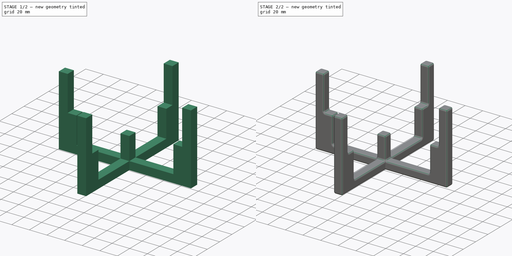
[diagram: build sequence overview — one tinted view per stage of 2, left to right]
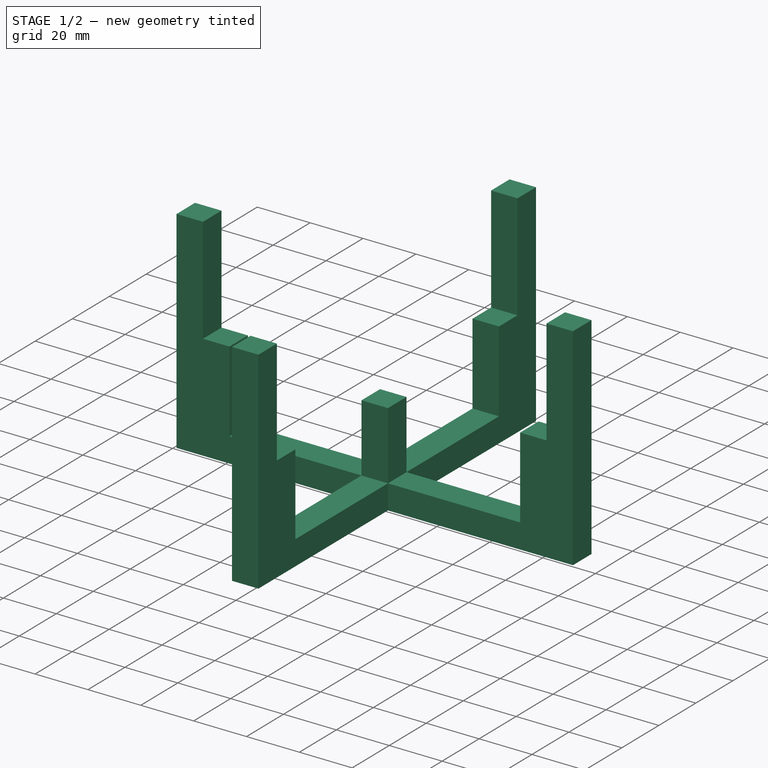
[diagram: stage 1 of 2 — iso view after this stage's code; geometry added in this stage tinted green]
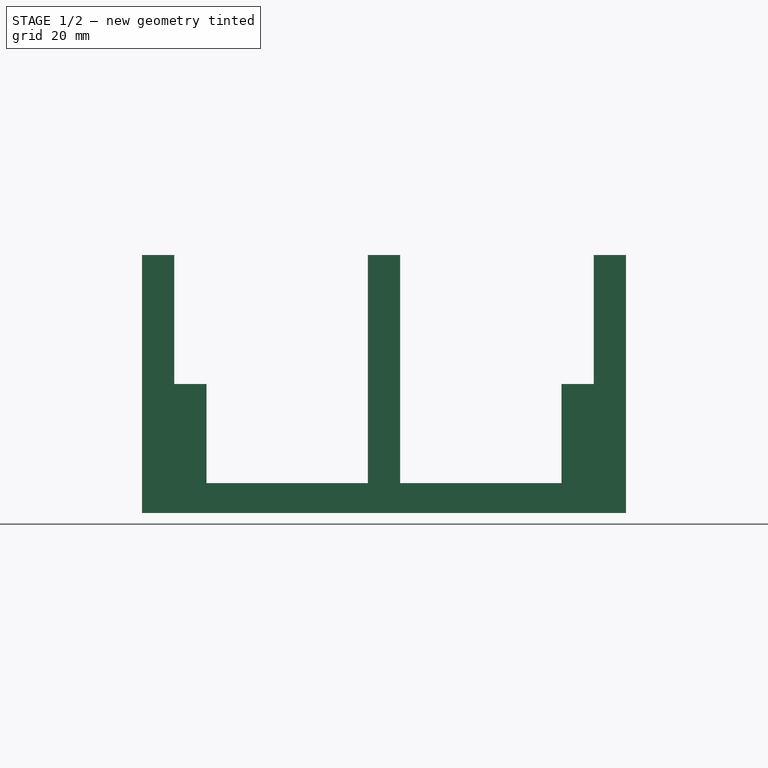
[diagram: stage 1 of 2 — front view after this stage's code; geometry added in this stage tinted green]
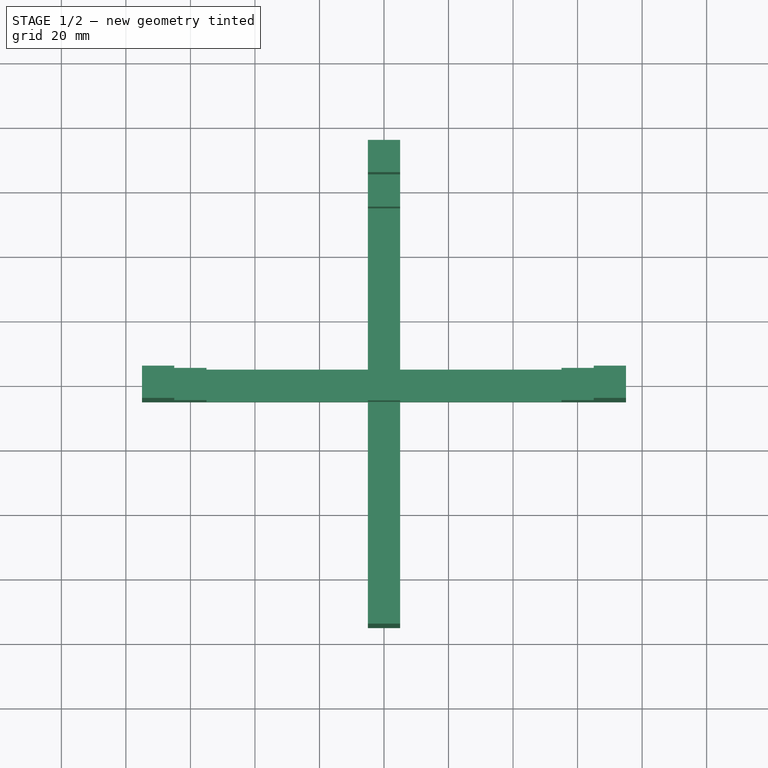
[diagram: stage 1 of 2 — top view after this stage's code; geometry added in this stage tinted green]
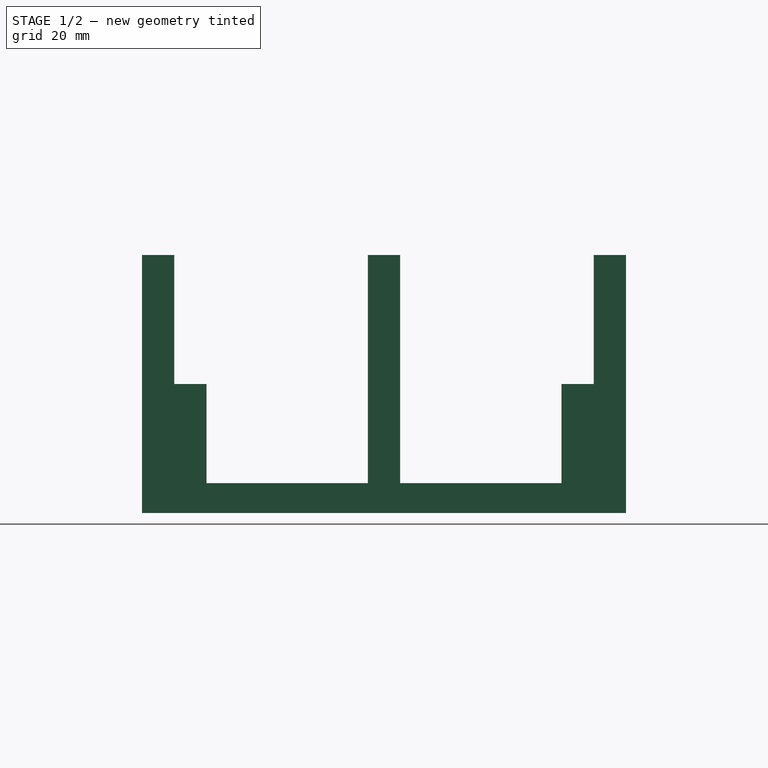
[diagram: stage 1 of 2 — right view after this stage's code; geometry added in this stage tinted green]
FCSTD DOCUMENT  (FreeCAD 0.20R29603 (Git))
Label: dishHolder
License: All rights reserved
LicenseURL: http://en.wikipedia.org/wiki/All_rights_reserved
objects: Sketcher::SketchObject×1, Part::Extrusion×1, Part::FeaturePython×1, Part::Fillet×1
note: 3 computed .brp shape members not serialized (recipe doc carries the construction recipe); baked Part::Feature solids carry a one-line shape summary decoded from their .brp

FEATURE [Sketcher::SketchObject] Sketch
  FullyConstrained = false
  sketch-geometry (10):
    g0: LineSegment StartX=0 StartY=80 StartZ=0 EndX=0 EndY=0 EndZ=0
    g1: LineSegment StartX=0 StartY=0 StartZ=0 EndX=80 EndY=0 EndZ=0
    g2: LineSegment StartX=10 StartY=80 StartZ=0 EndX=10 EndY=40 EndZ=0
    g3: LineSegment StartX=0 StartY=80 StartZ=0 EndX=10 EndY=80 EndZ=0
    g4: LineSegment StartX=80 StartY=0 StartZ=0 EndX=80 EndY=35 EndZ=0
    g5: LineSegment StartX=80 StartY=35 StartZ=0 EndX=70 EndY=35 EndZ=0
    g6: LineSegment StartX=20 StartY=40.0015 StartZ=0 EndX=10 EndY=40 EndZ=0
    g7: LineSegment StartX=20 StartY=40.0015 StartZ=0 EndX=20 EndY=9.27685 EndZ=0
    g8: LineSegment StartX=20 StartY=9.27685 StartZ=0 EndX=70 EndY=9.27685 EndZ=0
    g9: LineSegment StartX=70 StartY=35 StartZ=0 EndX=70 EndY=9.27685 EndZ=0
  constraints (27):
    c: Coincident(g0,g-1)
    c: Coincident(g0,g1)
    c: Vertical(g2)
    c: DistanceY(g0,g0) = 80
    c: DistanceX(g2) = 10
    c: Coincident(g3,g0)
    c: Coincident(g3,g2)
    c: Horizontal(g3)
    c: Vertical(g0)
    c: DistanceY(g2,g2) = 40
    c: Vertical(g4)
    c: DistanceY(g4,g4) = 35
    c: Coincident(g4,g1)
    c: Horizontal(g1)
    c: Coincident(g5,g4)
    c: Coincident(g6,g2)
    c: Coincident(g7,g6)
    c: Vertical(g7)
    c: Coincident(g8,g7)
    c: Horizontal(g8)
    c: DistanceX(g5,g5) = 10
    c: DistanceX(g6,g6) = 10
    c: DistanceX(g8,g8) = 50
    c: Horizontal(g5)
    c: Coincident(g9,g5)
    c: Coincident(g9,g8)
    c: Vertical(g9)
FEATURE [Part::Extrusion] Extrude
  Base = -> Sketch
  Dir = (0,0,1)
  DirMode = 2
  FaceMakerClass = Part::FaceMakerBullseye
  LengthFwd = 10
  LengthRev = 0
  Placement = pos=(-75,5,2e-15) rot=(1,0,0;1.5708rad)
  Solid = true
  Symmetric = false
FEATURE [Part::FeaturePython] Array  # Draft array (typed FeaturePython)
  AlwaysSyncPlacement = false
  Angle = 360
  ArrayType = 1
  Axis = (0,0,1)
  Base = -> Extrude
  Center = (0,0,0)
  Count = 4
  ExpandArray = false
  Fuse = false
  IntervalAxis = (0,0,0)
  IntervalX = (50,0,0)
  IntervalY = (0,50,0)
  IntervalZ = (0,0,50)
  NumberCircles = 3
  NumberPolar = 4
  NumberX = 2
  NumberY = 2
  NumberZ = 1
  PlacementList = 4 placements: [(-75,5,2e-15),(-5,-75,2e-15),(75,-5,2e-15),(5,75,2e-15)]
  RadialDistance = 50
  ScaleList = (4) [(1,1,1),(1,1,1),(1,1,1),(1,1,1)]
  Symmetry = 1
  TangentialDistance = 25
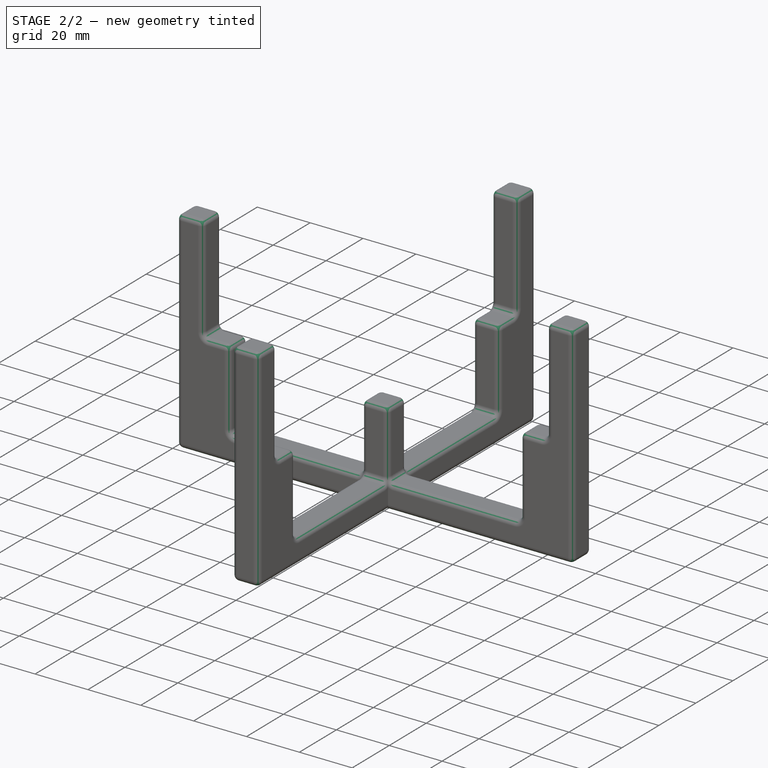
[diagram: stage 2 of 2 — iso view after this stage's code; geometry added in this stage tinted green]
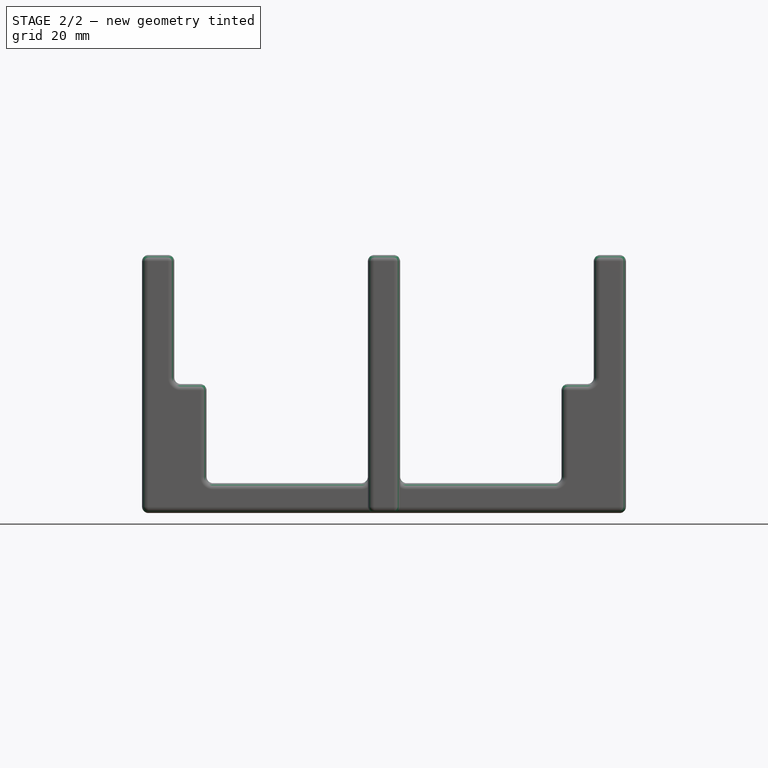
[diagram: stage 2 of 2 — front view after this stage's code; geometry added in this stage tinted green]
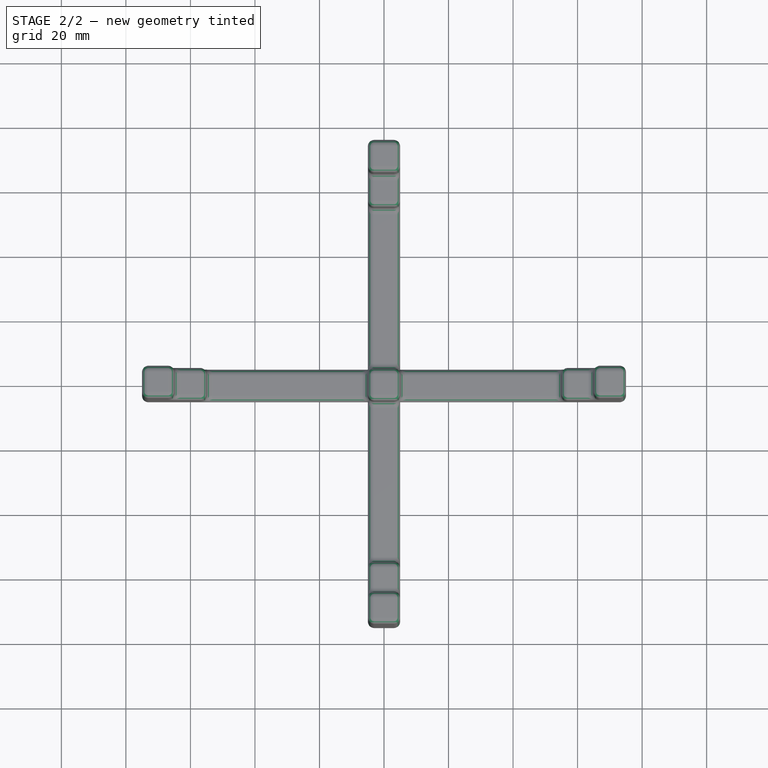
[diagram: stage 2 of 2 — top view after this stage's code; geometry added in this stage tinted green]
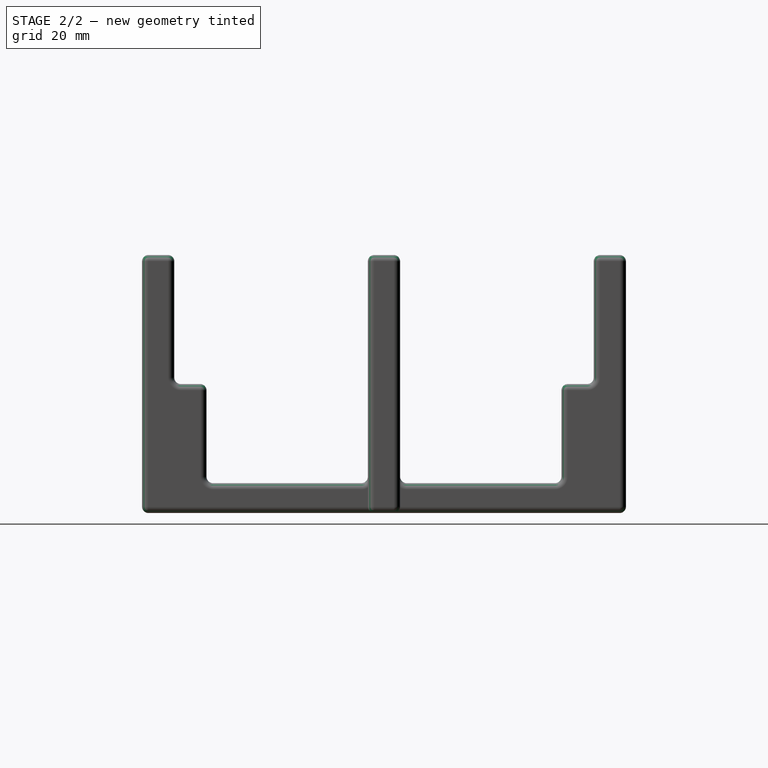
[diagram: stage 2 of 2 — right view after this stage's code; geometry added in this stage tinted green]
FEATURE [Part::Fillet] Fillet
  Base = -> Array
  Edges = 120 edges r=2: [Edge1,Edge2,Edge3,Edge4,Edge5,Edge6,Edge7,Edge8,Edge9,Edge10,Edge11,Edge12,Edge13,Edge14,Edge15,Edge16,Edge17,Edge18,Edge19,Edge20,Edge21,Edge22,Edge23,Edge24,Edge25,Edge26,Edge27,Edge28,Edge29,Edge30,Edge31,Edge32,Edge33,Edge34,Edge35,Edge36,Edge37,Edge38,Edge39,Edge40,Edge41,Edge42,Edge43,Edge44,+76 more]
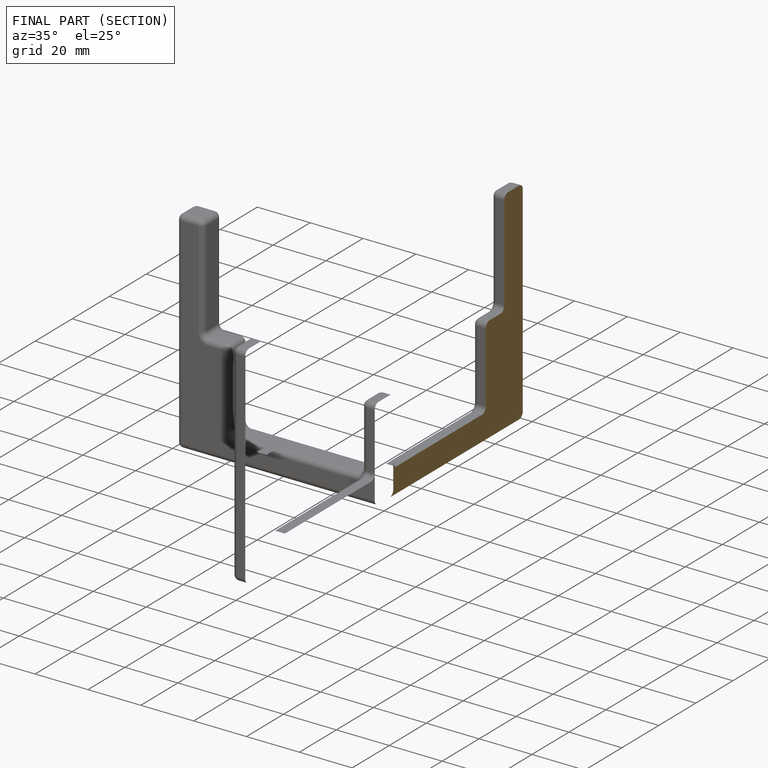
[diagram: finished part — half-section view (interior)]
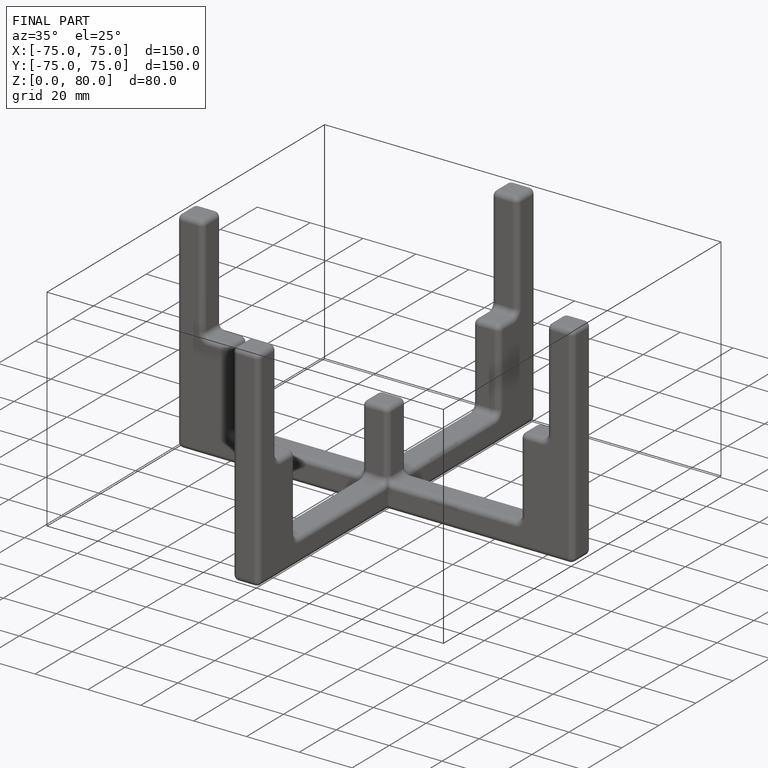
[diagram: finished part — iso view with bounding-box wireframe]
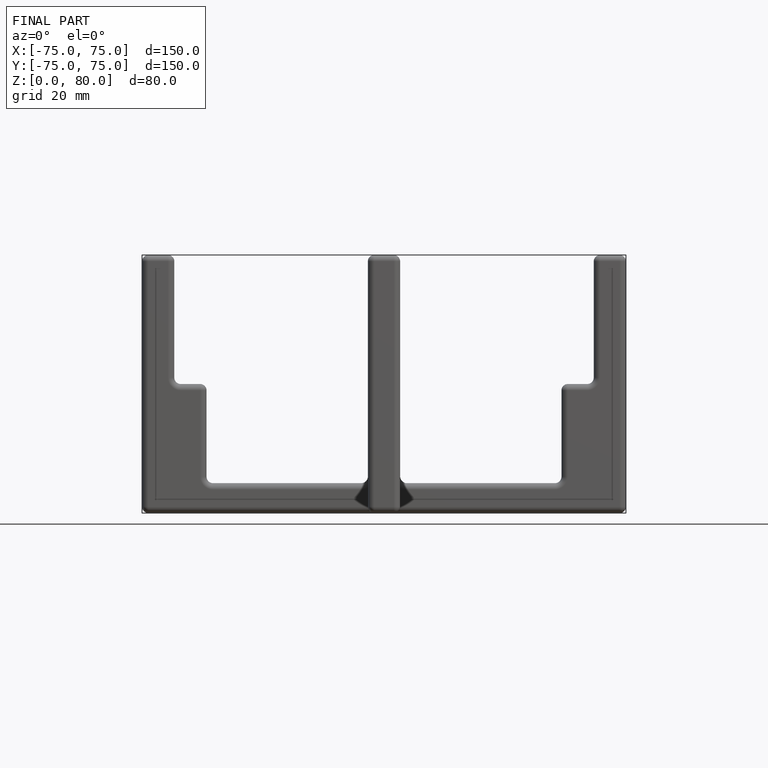
[diagram: finished part — front view with bounding-box wireframe]
